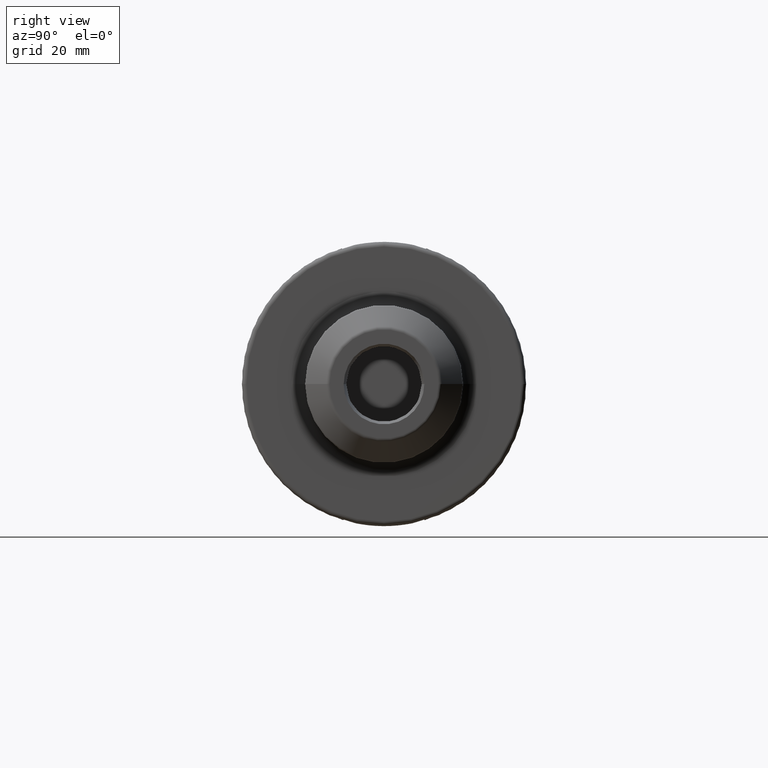
[diagram: clean part render]
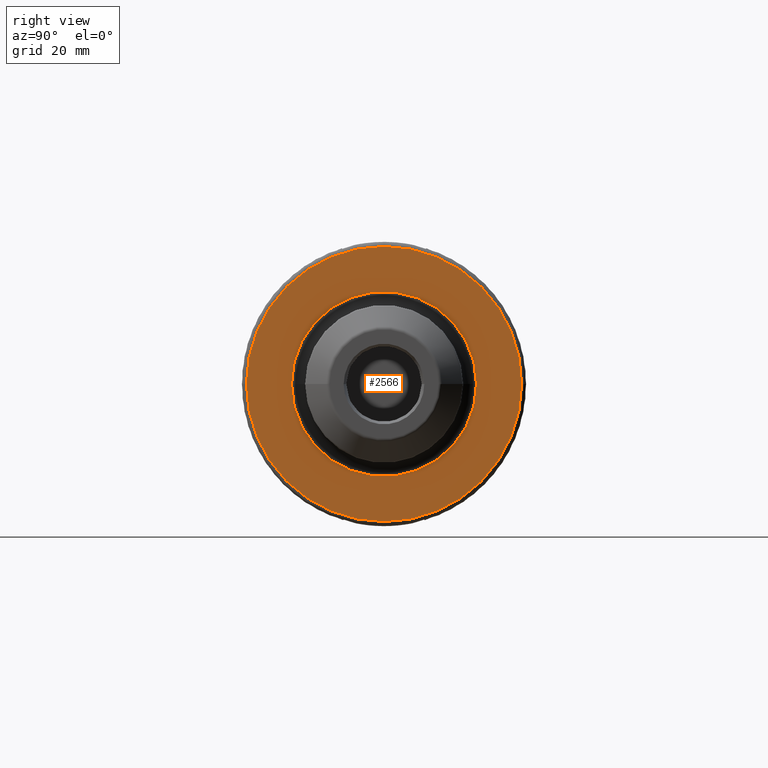
[diagram: same view with one face highlighted and labeled with its STEP entity id]
A machine part, right view. The second image highlights one B-rep face of the part: STEP entity #2566.
In plain terms, the highlighted planar face has unit normal (1, 0, 0).
Its self-contained STEP definition (entity closure, byte-faithful):
#816=CARTESIAN_POINT('',(2.7E1,0.E0,0.E0));
#817=DIRECTION('',(1.E0,0.E0,0.E0));
#818=DIRECTION('',(0.E0,1.E0,0.E0));
#819=AXIS2_PLACEMENT_3D('',#816,#817,#818);
#831=CARTESIAN_POINT('',(2.7E1,0.E0,0.E0));
#832=DIRECTION('',(-1.E0,0.E0,0.E0));
#833=DIRECTION('',(0.E0,1.E0,0.E0));
#834=AXIS2_PLACEMENT_3D('',#831,#832,#833);
#836=CARTESIAN_POINT('',(2.7E1,0.E0,0.E0));
#837=DIRECTION('',(1.E0,0.E0,0.E0));
#838=DIRECTION('',(0.E0,-1.E0,0.E0));
#839=AXIS2_PLACEMENT_3D('',#836,#837,#838);
#841=CARTESIAN_POINT('',(2.7E1,0.E0,0.E0));
#842=DIRECTION('',(1.E0,0.E0,0.E0));
#843=DIRECTION('',(0.E0,1.E0,0.E0));
#844=AXIS2_PLACEMENT_3D('',#841,#842,#843);
#1342=CARTESIAN_POINT('',(2.7E1,3.04875E1,0.E0));
#1343=VERTEX_POINT('',#1342);
#1344=CARTESIAN_POINT('',(2.7E1,-3.04875E1,0.E0));
#1345=VERTEX_POINT('',#1344);
#1443=CARTESIAN_POINT('',(2.7E1,-2.05E1,0.E0));
#1444=CARTESIAN_POINT('',(2.7E1,2.05E1,0.E0));
#1445=VERTEX_POINT('',#1443);
#1446=VERTEX_POINT('',#1444);
#2551=CARTESIAN_POINT('',(2.7E1,0.E0,0.E0));
#2552=DIRECTION('',(1.E0,0.E0,0.E0));
#2553=DIRECTION('',(0.E0,-1.E0,0.E0));
#2554=AXIS2_PLACEMENT_3D('',#2551,#2552,#2553);
#2555=PLANE('',#2554);
#2556=ORIENTED_EDGE('',*,*,#2546,.T.);
#2557=ORIENTED_EDGE('',*,*,#2530,.F.);
#2558=EDGE_LOOP('',(#2556,#2557));
#2559=FACE_OUTER_BOUND('',#2558,.F.);
#2561=ORIENTED_EDGE('',*,*,#2560,.T.);
#2563=ORIENTED_EDGE('',*,*,#2562,.T.);
#2564=EDGE_LOOP('',(#2561,#2563));
#2565=FACE_BOUND('',#2564,.F.);
#2566=ADVANCED_FACE('',(#2559,#2565),#2555,.T.);
#820=CIRCLE('',#819,3.04875E1);
#835=CIRCLE('',#834,3.04875E1);
#840=CIRCLE('',#839,2.05E1);
#845=CIRCLE('',#844,2.05E1);
#2530=EDGE_CURVE('',#1343,#1345,#820,.T.);
#2546=EDGE_CURVE('',#1343,#1345,#835,.T.);
#2560=EDGE_CURVE('',#1445,#1446,#840,.T.);
#2562=EDGE_CURVE('',#1446,#1445,#845,.T.);